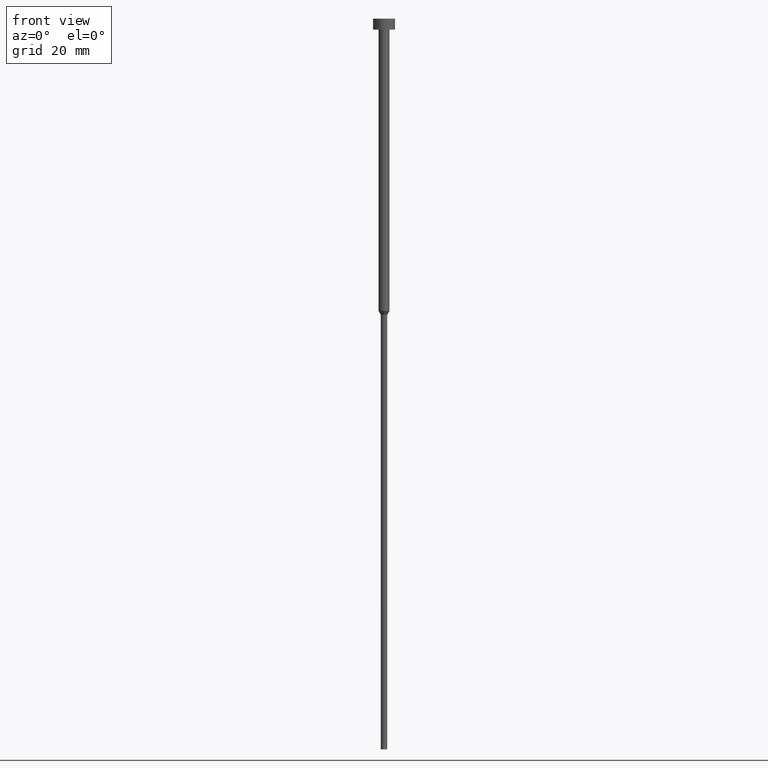
[diagram: clean part render]
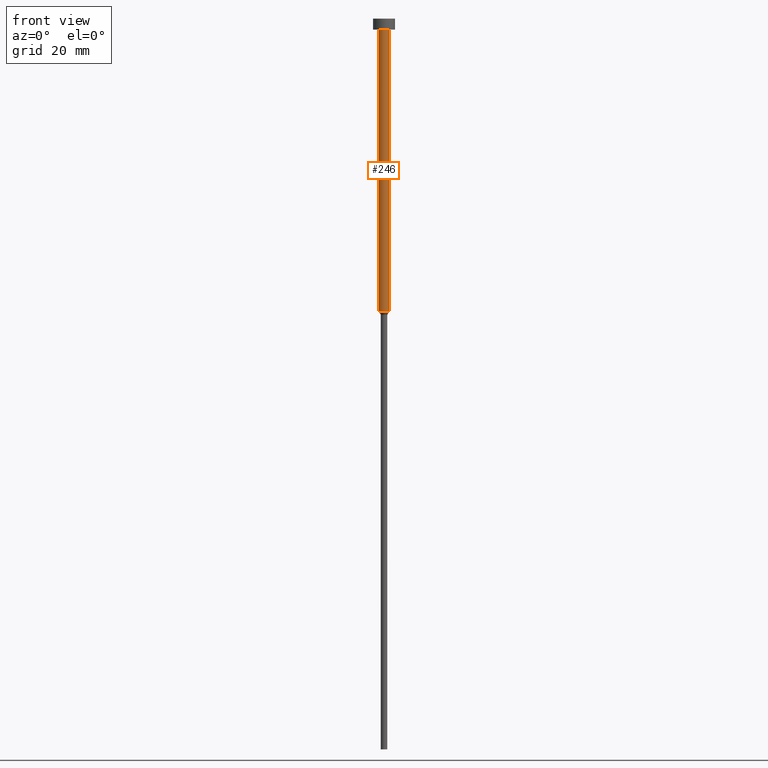
[diagram: same view with one face highlighted and labeled with its STEP entity id]
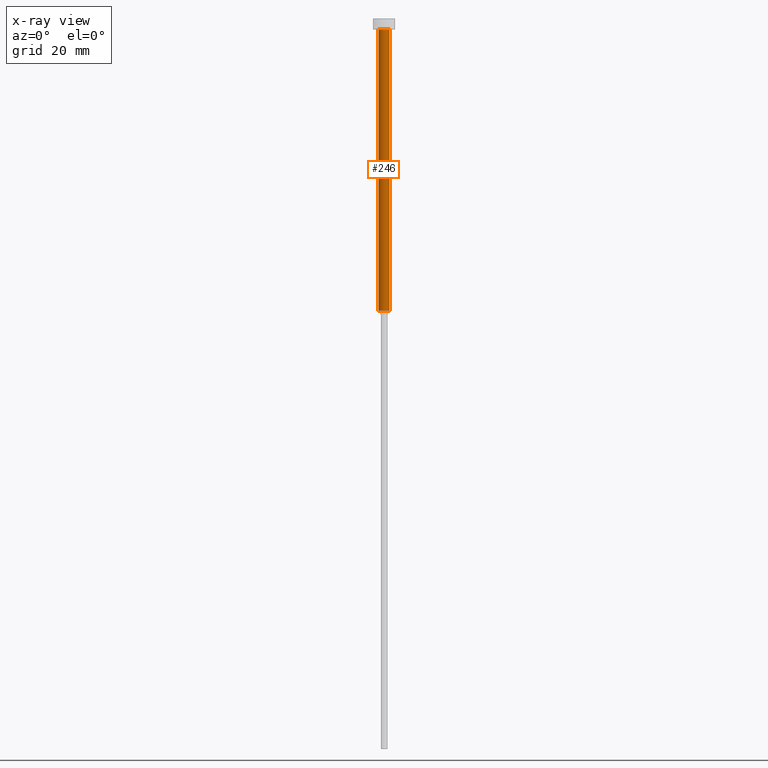
[diagram: x-ray of the same camera — body ghosted, the highlighted face saturated]
A machine part, front view. The second image highlights one B-rep face of the part: STEP entity #246.
The next image is the same camera in x-ray: the body ghosted, the highlighted face saturated — about 0% of this face is hidden behind the body in this view.
In plain terms, the highlighted cylindrical surface (edge-blend (fillet) strip) has radius 1.5 mm, axis along (-0, -0, 1).
Its self-contained STEP definition (entity closure, byte-faithful):
#2 = ORIENTED_EDGE ( 'NONE', *, *, #223, .F. ) ;
#19 = CARTESIAN_POINT ( 'NONE',  ( -1.500000000000000000, 1.836970198721029934E-16, 0.000000000000000000 ) ) ;
#47 = DIRECTION ( 'NONE',  ( 1.000000000000000000, 0.000000000000000000, 0.000000000000000000 ) ) ;
#58 = VERTEX_POINT ( 'NONE', #150 ) ;
#70 = DIRECTION ( 'NONE',  ( -0.000000000000000000, -0.000000000000000000, 1.000000000000000000 ) ) ;
#76 = DIRECTION ( 'NONE',  ( -0.000000000000000000, -0.000000000000000000, 1.000000000000000000 ) ) ;
#79 = CARTESIAN_POINT ( 'NONE',  ( 0.000000000000000000, 0.000000000000000000, 0.000000000000000000 ) ) ;
#85 = VERTEX_POINT ( 'NONE', #320 ) ;
#104 = EDGE_CURVE ( 'NONE', #189, #274, #262, .T. ) ;
#105 = DIRECTION ( 'NONE',  ( -0.000000000000000000, -0.000000000000000000, 1.000000000000000000 ) ) ;
#107 = DIRECTION ( 'NONE',  ( 1.000000000000000000, 0.000000000000000000, 0.000000000000000000 ) ) ;
#127 = CARTESIAN_POINT ( 'NONE',  ( 1.500000000000000000, 0.000000000000000000, 0.000000000000000000 ) ) ;
#132 = CARTESIAN_POINT ( 'NONE',  ( 0.000000000000000000, 0.000000000000000000, -3.000000000000000888 ) ) ;
#146 = ORIENTED_EDGE ( 'NONE', *, *, #257, .T. ) ;
#150 = CARTESIAN_POINT ( 'NONE',  ( 1.500000000000000000, 0.000000000000000000, -80.00000000000000000 ) ) ;
#151 = CARTESIAN_POINT ( 'NONE',  ( -1.500000000000000000, 1.836970198721029934E-16, -3.000000000000000888 ) ) ;
#158 = DIRECTION ( 'NONE',  ( -0.000000000000000000, -0.000000000000000000, 1.000000000000000000 ) ) ;
#159 = AXIS2_PLACEMENT_3D ( 'NONE', #132, #76, #267 ) ;
#164 = AXIS2_PLACEMENT_3D ( 'NONE', #79, #105, #107 ) ;
#172 = ORIENTED_EDGE ( 'NONE', *, *, #104, .F. ) ;
#189 = VERTEX_POINT ( 'NONE', #290 ) ;
#200 = VECTOR ( 'NONE', #158, 1000.000000000000000 ) ;
#223 = EDGE_CURVE ( 'NONE', #274, #85, #321, .T. ) ;
#232 = CARTESIAN_POINT ( 'NONE',  ( 0.000000000000000000, 0.000000000000000000, -80.00000000000000000 ) ) ;
#234 = FACE_OUTER_BOUND ( 'NONE', #331, .T. ) ;
#246 = ADVANCED_FACE ( 'NONE', ( #234 ), #296, .T. ) ;
#248 = ORIENTED_EDGE ( 'NONE', *, *, #268, .T. ) ;
#257 = EDGE_CURVE ( 'NONE', #58, #85, #329, .T. ) ;
#262 = LINE ( 'NONE', #19, #351 ) ;
#263 = DIRECTION ( 'NONE',  ( -0.000000000000000000, -0.000000000000000000, 1.000000000000000000 ) ) ;
#267 = DIRECTION ( 'NONE',  ( 1.000000000000000000, 0.000000000000000000, 0.000000000000000000 ) ) ;
#268 = EDGE_CURVE ( 'NONE', #189, #58, #304, .T. ) ;
#274 = VERTEX_POINT ( 'NONE', #151 ) ;
#290 = CARTESIAN_POINT ( 'NONE',  ( -1.500000000000000000, 1.836970198721029934E-16, -80.00000000000000000 ) ) ;
#296 = CYLINDRICAL_SURFACE ( 'NONE', #164, 1.500000000000000000 ) ;
#304 = CIRCLE ( 'NONE', #327, 1.500000000000000000 ) ;
#320 = CARTESIAN_POINT ( 'NONE',  ( 1.500000000000000000, 0.000000000000000000, -3.000000000000000888 ) ) ;
#321 = CIRCLE ( 'NONE', #159, 1.500000000000000000 ) ;
#327 = AXIS2_PLACEMENT_3D ( 'NONE', #232, #263, #47 ) ;
#329 = LINE ( 'NONE', #127, #200 ) ;
#331 = EDGE_LOOP ( 'NONE', ( #172, #248, #146, #2 ) ) ;
#351 = VECTOR ( 'NONE', #70, 1000.000000000000000 ) ;